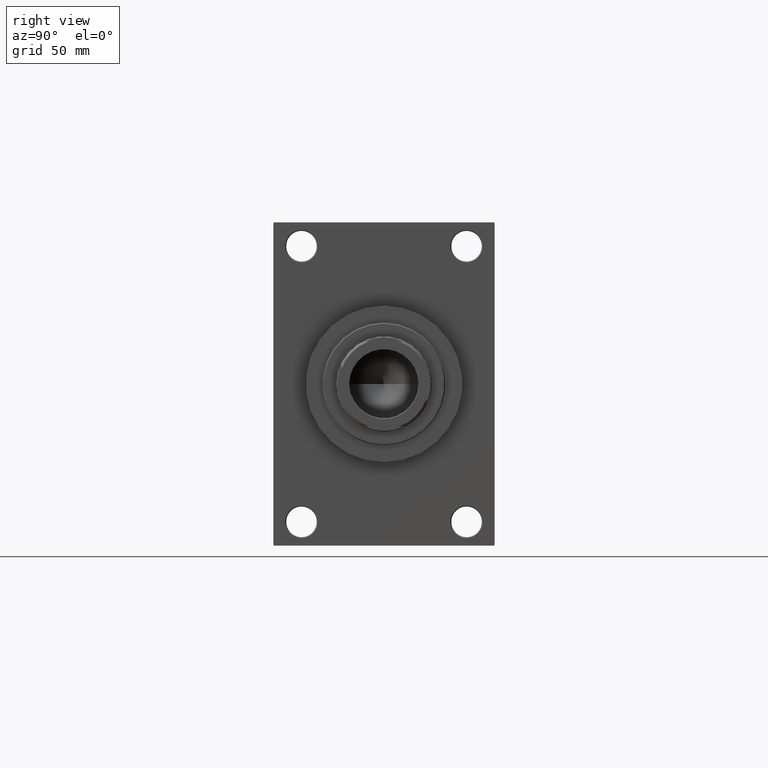
[diagram: clean part render]
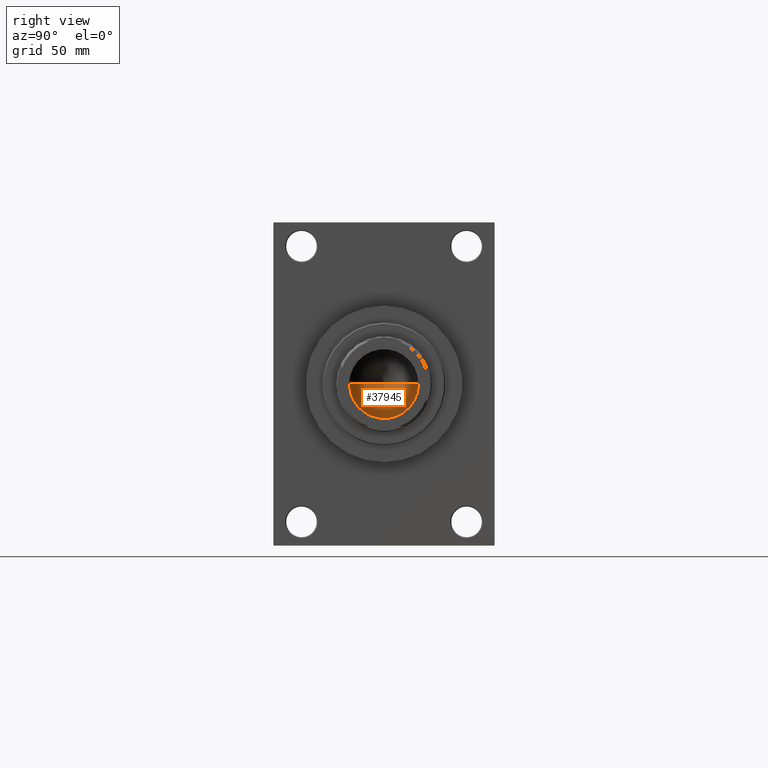
[diagram: same view with one face highlighted and labeled with its STEP entity id]
A machine part, right view. The second image highlights one B-rep face of the part: STEP entity #37945.
In plain terms, the highlighted conical surface has half-angle 59 deg.
Its self-contained STEP definition (entity closure, byte-faithful):
#5290 = EDGE_CURVE ( 'NONE', #45680, #44164, #39494, .T. ) ;
#5779 = LINE ( 'NONE', #16860, #26473 ) ;
#5945 = DIRECTION ( 'NONE',  ( -0.8571673007021112234, 1.049727191138617340E-16, 0.5150380749100560429 ) ) ;
#10766 = CONICAL_SURFACE ( 'NONE', #35424, 20.24999999999998934, 1.029744258676652313 ) ;
#11177 = VECTOR ( 'NONE', #5945, 1000.000000000000000 ) ;
#15617 = DIRECTION ( 'NONE',  ( -0.000000000000000000, -0.000000000000000000, 1.000000000000000000 ) ) ;
#16145 = EDGE_CURVE ( 'NONE', #31467, #45680, #5779, .T. ) ;
#16860 = CARTESIAN_POINT ( 'NONE',  ( 20.24999999999998934, 0.000000000000000000, 237.0000000000000568 ) ) ;
#17299 = CARTESIAN_POINT ( 'NONE',  ( 0.000000000000000000, 0.000000000000000000, 237.0000000000000568 ) ) ;
#18746 = EDGE_LOOP ( 'NONE', ( #20113, #43553, #21427 ) ) ;
#20113 = ORIENTED_EDGE ( 'NONE', *, *, #21841, .F. ) ;
#21427 = ORIENTED_EDGE ( 'NONE', *, *, #5290, .T. ) ;
#21841 = EDGE_CURVE ( 'NONE', #31467, #44164, #34888, .T. ) ;
#26473 = VECTOR ( 'NONE', #39067, 1000.000000000000000 ) ;
#26726 = CARTESIAN_POINT ( 'NONE',  ( 0.000000000000000000, 0.000000000000000000, 237.0000000000000568 ) ) ;
#31038 = CARTESIAN_POINT ( 'NONE',  ( -20.24999999999998934, 2.479909768273389117E-15, 237.0000000000000568 ) ) ;
#31467 = VERTEX_POINT ( 'NONE', #34204 ) ;
#32033 = DIRECTION ( 'NONE',  ( -0.000000000000000000, -0.000000000000000000, 1.000000000000000000 ) ) ;
#34204 = CARTESIAN_POINT ( 'NONE',  ( -1.584115414415908206E-14, 0.000000000000000000, 224.8325724646919070 ) ) ;
#34888 = LINE ( 'NONE', #31038, #11177 ) ;
#35424 = AXIS2_PLACEMENT_3D ( 'NONE', #17299, #32033, #47223 ) ;
#36839 = FACE_OUTER_BOUND ( 'NONE', #18746, .T. ) ;
#37945 = ADVANCED_FACE ( 'NONE', ( #36839 ), #10766, .F. ) ;
#38486 = CARTESIAN_POINT ( 'NONE',  ( 20.24999999999998934, 0.000000000000000000, 237.0000000000000568 ) ) ;
#39067 = DIRECTION ( 'NONE',  ( 0.8571673007021112234, 0.000000000000000000, 0.5150380749100560429 ) ) ;
#39494 = CIRCLE ( 'NONE', #45668, 20.24999999999998934 ) ;
#41217 = DIRECTION ( 'NONE',  ( 1.000000000000000000, 0.000000000000000000, 0.000000000000000000 ) ) ;
#42322 = CARTESIAN_POINT ( 'NONE',  ( -20.24999999999998934, 2.479909768273389117E-15, 237.0000000000000568 ) ) ;
#43553 = ORIENTED_EDGE ( 'NONE', *, *, #16145, .T. ) ;
#44164 = VERTEX_POINT ( 'NONE', #42322 ) ;
#45668 = AXIS2_PLACEMENT_3D ( 'NONE', #26726, #15617, #41217 ) ;
#45680 = VERTEX_POINT ( 'NONE', #38486 ) ;
#47223 = DIRECTION ( 'NONE',  ( 1.000000000000000000, 0.000000000000000000, 0.000000000000000000 ) ) ;